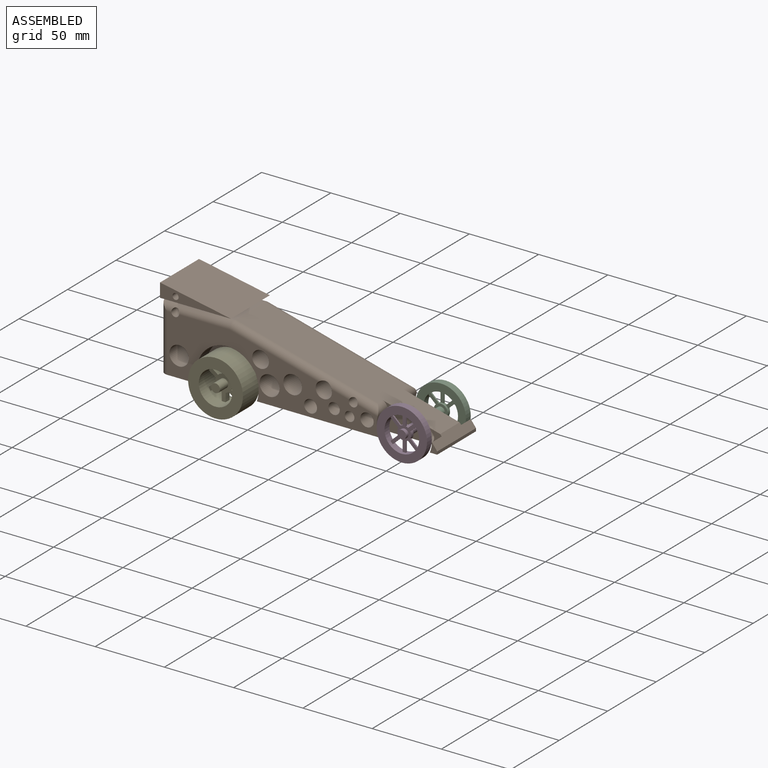
[diagram: assembled view]
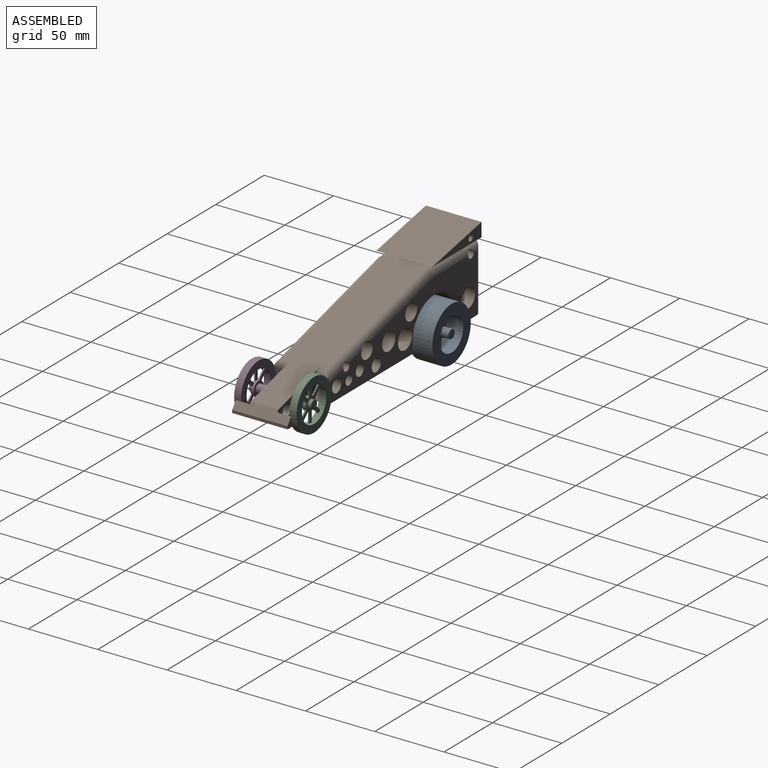
[diagram: assembled view, second angle]
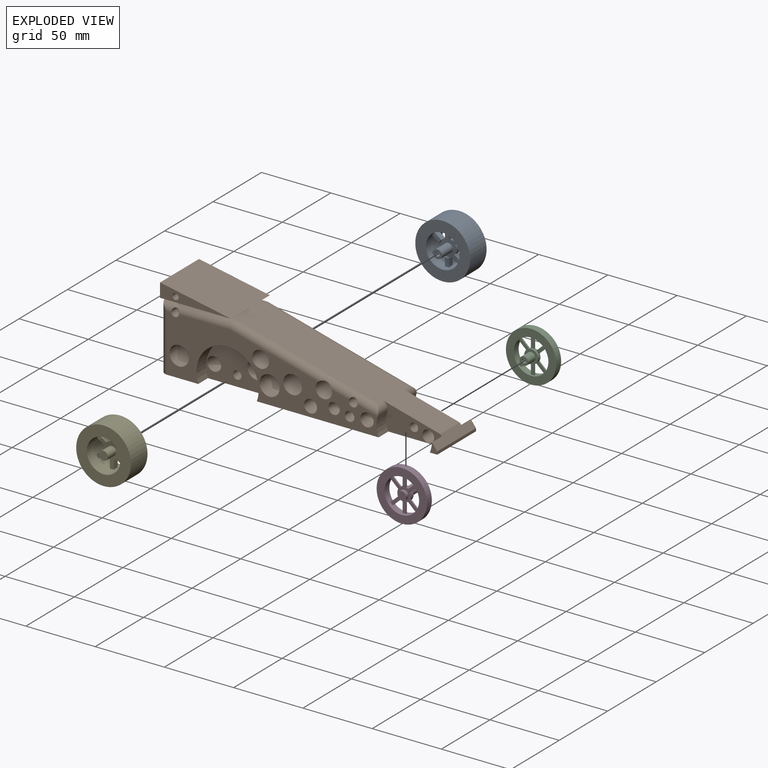
[diagram: exploded view]
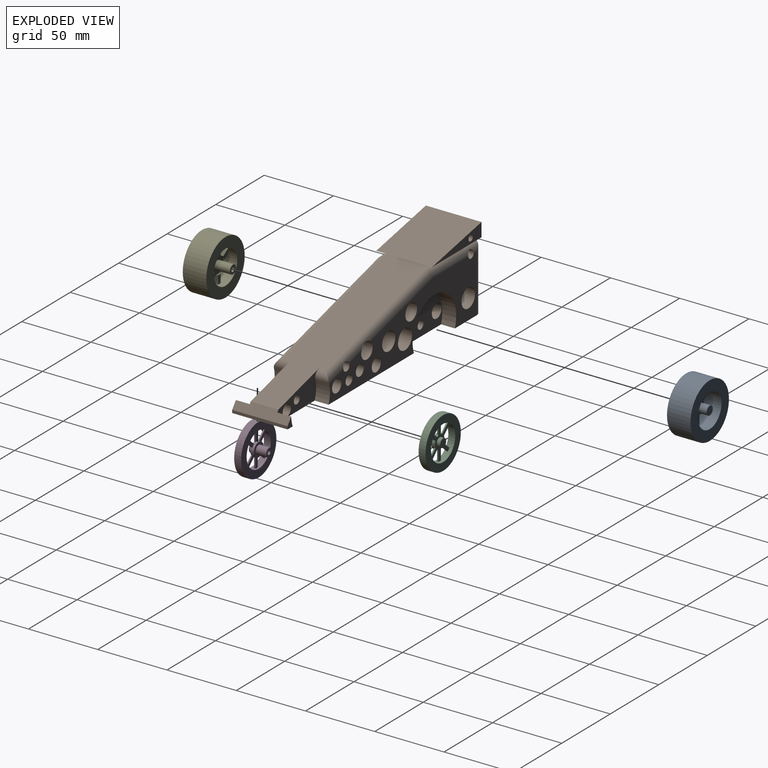
[diagram: exploded view, second angle]
ASSEMBLY  parts=5 mates=3
PART A: 42 faces, bbox 39.6x22.4x39.6 mm
  f0: cylinder r=12.1mm len=24.2mm, axis (0,-1,0), area 1225mm2, adj f2,f3,f4,f5,f6,f7,f8,f9
  f1: cylinder r=19.8mm len=39.6mm, axis (0,-1,0), area 2114.9mm2, adj f2,f3
  f2: plane 39.6x39.6mm, normal (0,1,0), area 771.7mm2, adj f0,f1
  f3: plane 39.6x39.6mm, normal (0,-1,0), area 771.7mm2, adj f0,f1
  f4: plane 6.21x2.8mm, normal (0,-1,0), area 17mm2, adj f0,f15,f16,f17
  f5: plane 24.22x21.29mm, normal (0,1,0), area 186.3mm2, adj f0,f15,f16,f18,f19,f20,f22,f23
  f6: plane 6.21x2.8mm, normal (0,-1,0), area 17mm2, adj f0,f19,f20,f21
  f7: plane 7.08x5.81mm, normal (0,-1,0), area 17.6mm2, adj f0,f23,f24,f25
  f8: plane 6.48x6.25mm, normal (0,-1,0), area 17.6mm2, adj f0,f28,f29,f30
  f9: plane 6.48x5.97mm, normal (0,-1,0), area 17mm2, adj f0,f32,f33,f34
  f10: plane 6.85x5.92mm, normal (0,-1,0), area 17.5mm2, adj f0,f37,f38,f39
  f11: cylinder r=3.17mm len=11.2mm, axis (0,-1,0), area 223.1mm2, adj f13,f26
  f12: cylinder r=1.57mm len=13.9mm, axis (0,-1,0), area 137.1mm2, adj f13,f14
  f13: plane 6.34x6.34mm, normal (0,-1,0), area 23.8mm2, adj f11,f12
  f14: plane 3.14x3.14mm, normal (0,-1,0), area 7.7mm2, adj f12
  f15: plane 6.11x4mm, normal (1,0,0), area 24.4mm2, adj f0,f4,f5,f17,f27
  f16: plane 6.12x4mm, normal (-1,0,0), area 24.5mm2, adj f0,f4,f5,f17,f18
  f17: cylinder r=6.07mm len=2.8mm, axis (0,1,0), area 3.7mm2, adj f4,f15,f16,f26
  f18: cylinder r=6.07mm len=2.75mm, axis (0,1,0), area 8.6mm2, adj f5,f16,f26,f34
  f19: plane 6.12x4mm, normal (-1,0,0), area 24.5mm2, adj f0,f5,f6,f21,f35
  f20: plane 6.11x4mm, normal (1,0,0), area 24.4mm2, adj f0,f5,f6,f21,f22
  f21: cylinder r=6.07mm len=2.8mm, axis (0,1,0), area 3.7mm2, adj f6,f19,f20,f26
  f22: cylinder r=6.07mm len=2.7mm, axis (0,1,0), area 6.8mm2, adj f5,f20,f26,f38
  f23: plane 5.22x4mm, normal (-0.59,0,0.8), area 25.4mm2, adj f0,f5,f7,f24,f26,f27
  f24: cylinder r=5.88mm len=2.07mm, axis (0,1,0), area 3.7mm2, adj f7,f23,f25,f26
  f25: plane 5x4mm, normal (0.59,0,-0.8), area 24.4mm2, adj f0,f5,f7,f24,f26,f36
  f26: plane 12.14x12.14mm, normal (0,-1,0), area 82.6mm2, adj f11,f17,f18,f21,f22,f23,f24,f25
  f27: cylinder r=6.07mm len=2.7mm, axis (0,1,0), area 4.9mm2, adj f5,f15,f23,f26
  f28: cylinder r=5.88mm len=2.55mm, axis (0,1,0), area 3.7mm2, adj f8,f26,f29,f30
  f29: plane 5.22x4mm, normal (-0.59,0,0.8), area 25.4mm2, adj f0,f5,f8,f26,f28,f31
  f30: plane 5x4mm, normal (0.59,0,-0.8), area 24.4mm2, adj f0,f5,f8,f26,f28,f35
  f31: cylinder r=6.07mm len=3.38mm, axis (0,1,0), area 9.3mm2, adj f5,f26,f29,f32
  f32: plane 4.96x4mm, normal (-0.59,0,-0.8), area 24.7mm2, adj f0,f5,f9,f31,f33
  f33: cylinder r=6.07mm len=2.36mm, axis (0,1,0), area 3.7mm2, adj f9,f26,f32,f34
  f34: plane 4.88x4mm, normal (0.59,0,0.8), area 24.3mm2, adj f0,f5,f9,f18,f33
  f35: cylinder r=6.07mm len=3.19mm, axis (0,1,0), area 10.3mm2, adj f5,f19,f26,f30
  f36: cylinder r=6.07mm len=6.03mm, axis (0,1,0), area 17.1mm2, adj f5,f25,f26,f39
  f37: cylinder r=5.88mm len=2.14mm, axis (0,1,0), area 3.7mm2, adj f10,f26,f38,f39
  f38: plane 5.12x4mm, normal (-0.59,0,-0.8), area 24.9mm2, adj f0,f5,f10,f22,f26,f37
  f39: plane 5.04x4mm, normal (0.59,0,0.8), area 24.5mm2, adj f0,f5,f10,f26,f36,f37
  f40: plane 6.32x6.32mm, normal (0,1,0), area 31.4mm2, adj f41
  f41: cylinder r=3.16mm len=8.5mm, axis (0,-1,0), area 168.9mm2, adj f5,f40
PART B: 68 faces, bbox 200x40.2x59 mm
  f0: cylinder r=5.02mm len=20mm, axis (0,1,0), area 631.2mm2, adj f45,f48
  f1: plane 152.78x41.48mm, normal (0,1,0), area 2739.4mm2, adj f10,f25,f26,f27,f28,f29,f30,f31
  f2: cylinder r=3mm len=20mm, axis (0,-1,0), area 377mm2, adj f45,f48
  f3: plane 143.45x37.96mm, normal (0.26,0,0.97), area 4020.2mm2, adj f37,f42,f49,f51,f55,f58,f59,f60
  f4: plane 6.96x5.27mm, normal (0,1,0), area 20.7mm2, adj f10,f11,f40,f60
  f5: cylinder r=3mm len=20mm, axis (0,-1,0), area 377mm2, adj f37,f42
  f6: plane 152.71x41.48mm, normal (0,-1,0), area 2738.6mm2, adj f10,f25,f26,f27,f28,f29,f30,f31
  f7: cylinder r=4.26mm len=20mm, axis (0,1,0), area 535.3mm2, adj f37,f42
  f8: plane 51.16x10mm, normal (0,1,0), area 240.6mm2, adj f20,f22,f23,f24
  f9: plane 46.48x30mm, normal (-1,0,0), area 1196.8mm2, adj f10,f13,f15,f50,f54,f61,f64,f66
  f10: plane 200x40mm, normal (0,0,-1), area 6404mm2, adj f1,f4,f6,f9,f11,f12,f37,f38
  f11: plane 40x2.08mm, normal (1,0,0), area 83.2mm2, adj f4,f10,f12,f60
  f12: plane 7.04x5.33mm, normal (0,-1,0), area 21.2mm2, adj f10,f11,f39,f60
  f13: cylinder r=5mm len=65mm, axis (-1,0,0), area 2024.3mm2, adj f9,f14,f25
  f14: plane 10x10mm, normal (-1,0,0), area 78.5mm2, adj f13
  f15: plane 50.44x30mm, normal (0,0,1), area 713.3mm2, adj f9,f16,f17,f18,f19,f52,f55,f56
  f16: plane 40x2.5mm, normal (0,1,0), area 100mm2, adj f15,f17,f19,f22
  f17: plane 20x2.5mm, normal (-1,0,0), area 50mm2, adj f15,f16,f18,f22
  f18: plane 40x2.5mm, normal (0,-1,0), area 100mm2, adj f15,f17,f19,f22
  f19: plane 20x2.5mm, normal (1,0,0), area 50mm2, adj f15,f16,f18,f22
  f20: plane 40.18x10mm, normal (-1,0,0), area 401.8mm2, adj f8,f21,f22,f23
  f21: plane 51.16x10mm, normal (0,-1,0), area 240.6mm2, adj f20,f22,f23,f24
  f22: plane 51.16x40.18mm, normal (0,0,-1), area 1255.4mm2, adj f8,f16,f17,f18,f19,f20,f21,f23
  f23: plane 51.16x40.18mm, normal (0.19,0,0.98), area 2094.3mm2, adj f8,f20,f21,f22
  f24: cylinder r=2.2mm len=40.18mm, axis (0,1,0), area 555.5mm2, adj f8,f21
  f25: cylinder r=2.85mm len=40mm, axis (0,1,0), area 685.2mm2, adj f1,f6,f13,f52,f56
  f26: cylinder r=6.96mm len=40mm, axis (0,1,0), area 1576mm2, adj f1,f6,f61,f62,f64
  f27: cylinder r=4.81mm len=40mm, axis (0,1,0), area 1208mm2, adj f1,f6
  f28: cylinder r=3.49mm len=40mm, axis (0,1,0), area 877.3mm2, adj f1,f6
  f29: cylinder r=3.15mm len=40mm, axis (0,1,0), area 782.1mm2, adj f1,f6,f51,f58
  f30: cylinder r=6.76mm len=40mm, axis (0,1,0), area 1699.2mm2, adj f1,f6
  f31: cylinder r=4.68mm len=40mm, axis (0,1,0), area 1176.5mm2, adj f1,f6
  f32: cylinder r=5.88mm len=40mm, axis (0,1,0), area 1468.1mm2, adj f1,f6,f51,f58
  f33: cylinder r=4.1mm len=40mm, axis (0,1,0), area 1029.6mm2, adj f1,f6
  f34: cylinder r=7.25mm len=40mm, axis (0,1,0), area 1822.7mm2, adj f1,f6
  f35: cylinder r=6.87mm len=40mm, axis (0,1,0), area 955.5mm2, adj f1,f6,f43,f44,f45,f46,f47,f48
  f36: cylinder r=6.06mm len=40mm, axis (0,1,0), area 1522.2mm2, adj f1,f6
  f37: plane 42.74x19.4mm, normal (0,-1,0), area 438mm2, adj f3,f5,f7,f10,f38,f39,f49,f60
  f38: cylinder r=20mm len=13.18mm, axis (0,-1,0), area 134.6mm2, adj f6,f10,f37,f49
  f39: cylinder r=20mm len=10mm, axis (0,-1,0), area 72.4mm2, adj f10,f12,f37,f60
  f40: cylinder r=20mm len=10mm, axis (0,1,0), area 71.6mm2, adj f4,f10,f42,f60
  f41: cylinder r=20mm len=13.17mm, axis (0,1,0), area 134.4mm2, adj f1,f10,f42,f59
  f42: plane 42.74x19.38mm, normal (0,1,0), area 437.3mm2, adj f3,f5,f7,f10,f40,f41,f59,f60
  f43: cylinder r=22.5mm len=16.13mm, axis (0,1,0), area 165mm2, adj f1,f10,f35,f45
  f44: cylinder r=22.5mm len=41.23mm, axis (0,1,0), area 652.8mm2, adj f1,f10,f35,f45
  f45: plane 45x30.16mm, normal (0,1,0), area 878.2mm2, adj f0,f2,f10,f35,f43,f44
  f46: cylinder r=22.5mm len=41.23mm, axis (0,-1,0), area 652.8mm2, adj f6,f10,f35,f48
  f47: cylinder r=22.5mm len=16.13mm, axis (0,-1,0), area 165mm2, adj f6,f10,f35,f48
  f48: plane 45x30.16mm, normal (0,-1,0), area 878.2mm2, adj f0,f2,f10,f35,f46,f47
  f49: cylinder r=5mm len=10mm, axis (0,-1,0), area 65.3mm2, adj f3,f6,f37,f38,f51
  f50: cylinder r=5mm len=46.48mm, axis (0,0,1), area 350.8mm2, adj f6,f9,f10,f52
  f51: cylinder r=5mm len=107.84mm, axis (0.97,0,-0.26), area 816.9mm2, adj f3,f6,f29,f32,f49,f53
  f52: cylinder r=5mm len=50.44mm, axis (-1,0,0), area 364.6mm2, adj f6,f15,f25,f50,f53
  f53: sphere r=5mm, area 6.5mm2, adj f51,f52,f55
  f54: cylinder r=5mm len=46.48mm, axis (0,0,-1), area 350.8mm2, adj f1,f9,f10,f56
  f55: cylinder r=5mm len=30mm, axis (0,1,0), area 38.8mm2, adj f3,f15,f53,f57
  f56: cylinder r=5mm len=50.44mm, axis (1,0,0), area 364.6mm2, adj f1,f15,f25,f54,f57
  f57: sphere r=5mm, area 6.5mm2, adj f55,f56,f58
  f58: cylinder r=5mm len=107.89mm, axis (-0.97,0,0.26), area 817.4mm2, adj f1,f3,f29,f32,f57,f59
  f59: cylinder r=5mm len=10mm, axis (0,1,0), area 65.3mm2, adj f1,f3,f41,f42,f58
  f60: plane 40x6.28mm, normal (0.79,0,0.61), area 282.7mm2, adj f3,f4,f11,f12,f37,f39,f40,f42
  f61: cylinder r=3.96mm len=9.08mm, axis (-1,0,0), area 184.5mm2, adj f9,f26
  f62: cylinder r=3.96mm len=7.91mm, axis (-1,0,0), area 129.5mm2, adj f26,f63
  f63: plane 7.91x7.91mm, normal (-1,0,0), area 49.2mm2, adj f62
  f64: cylinder r=2.51mm len=25mm, axis (-1,0,0), area 271.4mm2, adj f9,f26,f65
  f65: plane 5.02x5.02mm, normal (-1,0,0), area 19.8mm2, adj f64
  f66: cylinder r=3.99mm len=25mm, axis (-1,0,0), area 627mm2, adj f9,f67
  f67: plane 7.98x7.98mm, normal (-1,0,0), area 50.1mm2, adj f66
PART C: 31 faces, bbox 36.4x12.5x36.4 mm
  f0: cylinder r=3.1mm len=7.5mm, axis (0,-1,0), area 146.1mm2, adj f2,f5
  f1: cylinder r=1.5mm len=10mm, axis (0,-1,0), area 94.2mm2, adj f2,f3
  f2: plane 6.2x6.2mm, normal (0,-1,0), area 23.1mm2, adj f0,f1
  f3: plane 3x3mm, normal (0,-1,0), area 7.1mm2, adj f1
  f4: cylinder r=5mm len=10mm, axis (0,1,0), area 64mm2, adj f5,f6,f9,f10,f11,f12,f13,f14
  f5: plane 10x10mm, normal (0,-1,0), area 48.3mm2, adj f0,f4
  f6: plane 25.02x19.87mm, normal (0,1,0), area 156.8mm2, adj f4,f8,f9,f10,f12,f13,f15,f16
  f7: plane 6.18x6.18mm, normal (0,1,0), area 30mm2, adj f8
  f8: cylinder r=3.09mm len=6.18mm, axis (0,-1,0), area 48.5mm2, adj f6,f7
  f9: plane 5.55x5.17mm, normal (0.68,0,-0.73), area 7.6mm2, adj f4,f6,f11,f27
  f10: plane 5.55x5.17mm, normal (-0.68,0,0.73), area 7.6mm2, adj f4,f6,f11,f27
  f11: plane 7.19x6.93mm, normal (0,-1,0), area 18.1mm2, adj f4,f9,f10,f27
  f12: plane 7.59x1mm, normal (1,0,0), area 7.6mm2, adj f4,f6,f14,f27
  f13: plane 7.59x1mm, normal (-1,0,0), area 7.6mm2, adj f4,f6,f14,f27
  f14: plane 7.65x2.4mm, normal (0,-1,0), area 18.1mm2, adj f4,f12,f13,f27
  f15: plane 5.55x5.17mm, normal (-0.68,0,-0.73), area 7.6mm2, adj f4,f6,f17,f27
  f16: plane 5.55x5.17mm, normal (0.68,0,0.73), area 7.6mm2, adj f4,f6,f17,f27
  f17: plane 7.19x6.93mm, normal (0,-1,0), area 18.1mm2, adj f4,f15,f16,f27
  f18: plane 5.55x5.17mm, normal (-0.68,0,0.73), area 7.6mm2, adj f4,f6,f20,f27
  f19: plane 5.55x5.17mm, normal (0.68,0,-0.73), area 7.6mm2, adj f4,f6,f20,f27
  f20: plane 7.19x6.93mm, normal (0,-1,0), area 18.1mm2, adj f4,f18,f19,f27
  f21: plane 7.59x1mm, normal (-1,0,0), area 7.6mm2, adj f4,f6,f23,f27
  f22: plane 7.59x1mm, normal (1,0,0), area 7.6mm2, adj f4,f6,f23,f27
  f23: plane 7.65x2.4mm, normal (0,-1,0), area 18.1mm2, adj f4,f21,f22,f27
  f24: plane 5.55x5.17mm, normal (-0.68,0,-0.73), area 7.6mm2, adj f4,f6,f26,f27
  f25: plane 5.55x5.17mm, normal (0.68,0,0.73), area 7.6mm2, adj f4,f6,f26,f27
  f26: plane 7.19x6.93mm, normal (0,-1,0), area 18.1mm2, adj f4,f24,f25,f27
  f27: cylinder r=12.5mm len=25mm, axis (0,-1,0), area 378.3mm2, adj f6,f9,f10,f11,f12,f13,f14,f15
  f28: cylinder r=18.2mm len=36.4mm, axis (0,-1,0), area 571.8mm2, adj f29,f30
  f29: plane 36.4x36.4mm, normal (0,1,0), area 549.7mm2, adj f27,f28
  f30: plane 36.4x36.4mm, normal (0,-1,0), area 549.7mm2, adj f27,f28
PART D: 31 faces, bbox 36.4x12.5x36.4 mm
  f0: cylinder r=3.1mm len=7.5mm, axis (0,1,0), area 146.1mm2, adj f2,f5
  f1: cylinder r=1.5mm len=10mm, axis (0,1,0), area 94.2mm2, adj f2,f3
  f2: plane 6.2x6.2mm, normal (0,1,0), area 23.1mm2, adj f0,f1
  f3: plane 3x3mm, normal (0,1,0), area 7.1mm2, adj f1
  f4: cylinder r=5mm len=10mm, axis (0,-1,0), area 64mm2, adj f5,f6,f9,f10,f11,f12,f13,f14
  f5: plane 10x10mm, normal (0,1,0), area 48.3mm2, adj f0,f4
  f6: plane 25.02x19.87mm, normal (0,-1,0), area 156.8mm2, adj f4,f8,f9,f10,f12,f13,f15,f16
  f7: plane 6.18x6.18mm, normal (0,-1,0), area 30mm2, adj f8
  f8: cylinder r=3.09mm len=6.18mm, axis (0,1,0), area 48.5mm2, adj f6,f7
  f9: plane 5.55x5.17mm, normal (0.68,0,-0.73), area 7.6mm2, adj f4,f6,f11,f27
  f10: plane 5.55x5.17mm, normal (-0.68,0,0.73), area 7.6mm2, adj f4,f6,f11,f27
  f11: plane 7.19x6.93mm, normal (0,1,0), area 18.1mm2, adj f4,f9,f10,f27
  f12: plane 7.59x1mm, normal (1,0,0), area 7.6mm2, adj f4,f6,f14,f27
  f13: plane 7.59x1mm, normal (-1,0,0), area 7.6mm2, adj f4,f6,f14,f27
  f14: plane 7.65x2.4mm, normal (0,1,0), area 18.1mm2, adj f4,f12,f13,f27
  f15: plane 5.55x5.17mm, normal (-0.68,0,-0.73), area 7.6mm2, adj f4,f6,f17,f27
  f16: plane 5.55x5.17mm, normal (0.68,0,0.73), area 7.6mm2, adj f4,f6,f17,f27
  f17: plane 7.19x6.93mm, normal (0,1,0), area 18.1mm2, adj f4,f15,f16,f27
  f18: plane 5.55x5.17mm, normal (-0.68,0,0.73), area 7.6mm2, adj f4,f6,f20,f27
  f19: plane 5.55x5.17mm, normal (0.68,0,-0.73), area 7.6mm2, adj f4,f6,f20,f27
  f20: plane 7.19x6.93mm, normal (0,1,0), area 18.1mm2, adj f4,f18,f19,f27
  f21: plane 7.59x1mm, normal (-1,0,0), area 7.6mm2, adj f4,f6,f23,f27
  f22: plane 7.59x1mm, normal (1,0,0), area 7.6mm2, adj f4,f6,f23,f27
  f23: plane 7.65x2.4mm, normal (0,1,0), area 18.1mm2, adj f4,f21,f22,f27
  f24: plane 5.55x5.17mm, normal (-0.68,0,-0.73), area 7.6mm2, adj f4,f6,f26,f27
  f25: plane 5.55x5.17mm, normal (0.68,0,0.73), area 7.6mm2, adj f4,f6,f26,f27
  f26: plane 7.19x6.93mm, normal (0,1,0), area 18.1mm2, adj f4,f24,f25,f27
  f27: cylinder r=12.5mm len=25mm, axis (0,1,0), area 378.3mm2, adj f6,f9,f10,f11,f12,f13,f14,f15
  f28: cylinder r=18.2mm len=36.4mm, axis (0,1,0), area 571.8mm2, adj f29,f30
  f29: plane 36.4x36.4mm, normal (0,-1,0), area 549.7mm2, adj f27,f28
  f30: plane 36.4x36.4mm, normal (0,1,0), area 549.7mm2, adj f27,f28
PART E: 42 faces, bbox 39.6x22.4x39.6 mm
  f0: cylinder r=12.1mm len=24.2mm, axis (0,1,0), area 1225mm2, adj f2,f3,f4,f5,f6,f7,f8,f9
  f1: cylinder r=19.8mm len=39.6mm, axis (0,1,0), area 2114.9mm2, adj f2,f3
  f2: plane 39.6x39.6mm, normal (0,-1,0), area 771.7mm2, adj f0,f1
  f3: plane 39.6x39.6mm, normal (0,1,0), area 771.7mm2, adj f0,f1
  f4: plane 6.21x2.8mm, normal (0,1,0), area 17mm2, adj f0,f15,f16,f17
  f5: plane 24.22x21.29mm, normal (0,-1,0), area 186.2mm2, adj f0,f15,f16,f18,f19,f20,f22,f23
  f6: plane 6.21x2.8mm, normal (0,1,0), area 17mm2, adj f0,f19,f20,f21
  f7: plane 7.08x5.81mm, normal (0,1,0), area 17.6mm2, adj f0,f23,f24,f25
  f8: plane 6.48x6.25mm, normal (0,1,0), area 17.6mm2, adj f0,f28,f29,f30
  f9: plane 6.48x5.97mm, normal (0,1,0), area 17mm2, adj f0,f32,f33,f34
  f10: plane 6.85x5.92mm, normal (0,1,0), area 17.5mm2, adj f0,f37,f38,f39
  f11: cylinder r=3.17mm len=11.2mm, axis (0,1,0), area 223.1mm2, adj f13,f26
  f12: cylinder r=1.57mm len=13.9mm, axis (0,1,0), area 137.1mm2, adj f13,f14
  f13: plane 6.34x6.34mm, normal (0,1,0), area 23.8mm2, adj f11,f12
  f14: plane 3.14x3.14mm, normal (0,1,0), area 7.7mm2, adj f12
  f15: plane 6.11x4mm, normal (1,0,0), area 24.4mm2, adj f0,f4,f5,f17,f27
  f16: plane 6.12x4mm, normal (-1,0,0), area 24.5mm2, adj f0,f4,f5,f17,f18
  f17: cylinder r=6.07mm len=2.8mm, axis (0,-1,0), area 3.7mm2, adj f4,f15,f16,f26
  f18: cylinder r=6.07mm len=2.75mm, axis (0,-1,0), area 8.6mm2, adj f5,f16,f26,f34
  f19: plane 6.12x4mm, normal (-1,0,0), area 24.5mm2, adj f0,f5,f6,f21,f35
  f20: plane 6.11x4mm, normal (1,0,0), area 24.4mm2, adj f0,f5,f6,f21,f22
  f21: cylinder r=6.07mm len=2.8mm, axis (0,-1,0), area 3.7mm2, adj f6,f19,f20,f26
  f22: cylinder r=6.07mm len=2.7mm, axis (0,-1,0), area 6.8mm2, adj f5,f20,f26,f38
  f23: plane 5.22x4mm, normal (-0.59,0,0.8), area 25.4mm2, adj f0,f5,f7,f24,f26,f27
  f24: cylinder r=5.88mm len=2.07mm, axis (0,-1,0), area 3.7mm2, adj f7,f23,f25,f26
  f25: plane 5x4mm, normal (0.59,0,-0.8), area 24.4mm2, adj f0,f5,f7,f24,f26,f36
  f26: plane 12.14x12.14mm, normal (0,1,0), area 82.6mm2, adj f11,f17,f18,f21,f22,f23,f24,f25
  f27: cylinder r=6.07mm len=2.7mm, axis (0,-1,0), area 4.9mm2, adj f5,f15,f23,f26
  f28: cylinder r=5.88mm len=2.55mm, axis (0,-1,0), area 3.7mm2, adj f8,f26,f29,f30
  f29: plane 5.22x4mm, normal (-0.59,0,0.8), area 25.4mm2, adj f0,f5,f8,f26,f28,f31
  f30: plane 5x4mm, normal (0.59,0,-0.8), area 24.4mm2, adj f0,f5,f8,f26,f28,f35
  f31: cylinder r=6.07mm len=3.38mm, axis (0,-1,0), area 9.3mm2, adj f5,f26,f29,f32
  f32: plane 4.96x4mm, normal (-0.59,0,-0.8), area 24.7mm2, adj f0,f5,f9,f31,f33
  f33: cylinder r=6.07mm len=2.36mm, axis (0,-1,0), area 3.7mm2, adj f9,f26,f32,f34
  f34: plane 4.88x4mm, normal (0.59,0,0.8), area 24.3mm2, adj f0,f5,f9,f18,f33
  f35: cylinder r=6.07mm len=3.19mm, axis (0,-1,0), area 10.3mm2, adj f5,f19,f26,f30
  f36: cylinder r=6.07mm len=6.03mm, axis (0,-1,0), area 17.1mm2, adj f5,f25,f26,f39
  f37: cylinder r=5.88mm len=2.14mm, axis (0,-1,0), area 3.7mm2, adj f10,f26,f38,f39
  f38: plane 5.12x4mm, normal (-0.59,0,-0.8), area 24.9mm2, adj f0,f5,f10,f22,f26,f37
  f39: plane 5.04x4mm, normal (0.59,0,0.8), area 24.5mm2, adj f0,f5,f10,f26,f36,f37
  f40: plane 6.32x6.32mm, normal (0,-1,0), area 31.4mm2, adj f41
  f41: cylinder r=3.16mm len=8.5mm, axis (0,1,0), area 168.9mm2, adj f5,f40
PLACE A t=(-9.01,-72.38,-2.09)mm
PLACE B t=(12.05,-18.48,16.7)mm
PLACE C t=(104.11,-53.48,-7.94)mm
PLACE D t=(104.04,-48.48,-7.95)mm
PLACE E t=(-9.01,-53.18,-2.09)mm
MATE revolute E.f0 <-> B.f2  axis (0,1,0) through (-23.51,-48.48,-7.94)mm
MATE revolute C.f0 <-> B.f5  axis (0,-1,0) through (104.11,-28.48,-7.94)mm
MATE revolute A.f0 <-> B.f2  axis (0,-1,0) through (-23.51,-28.48,-7.94)mm
